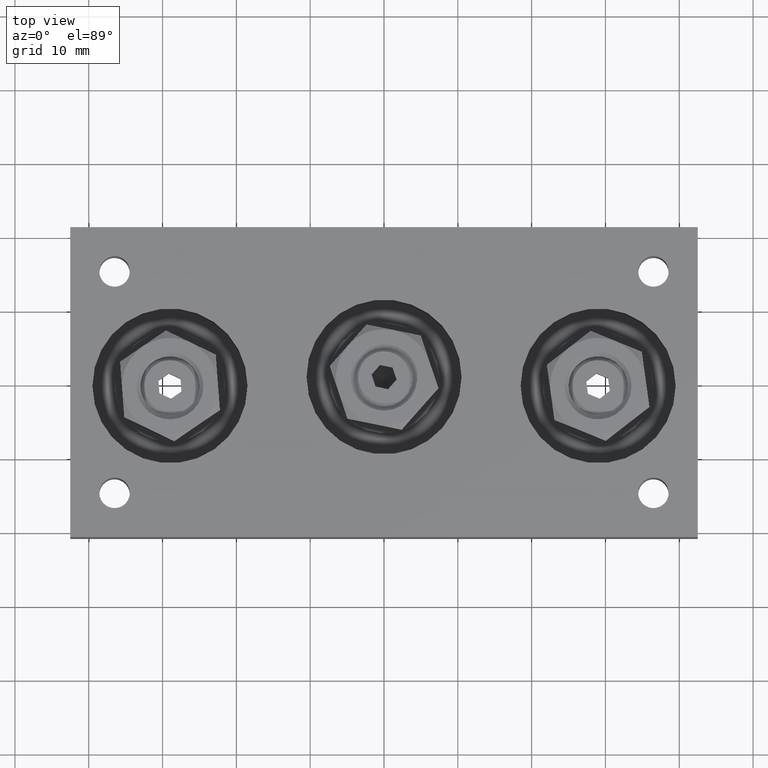
[diagram: clean part render]
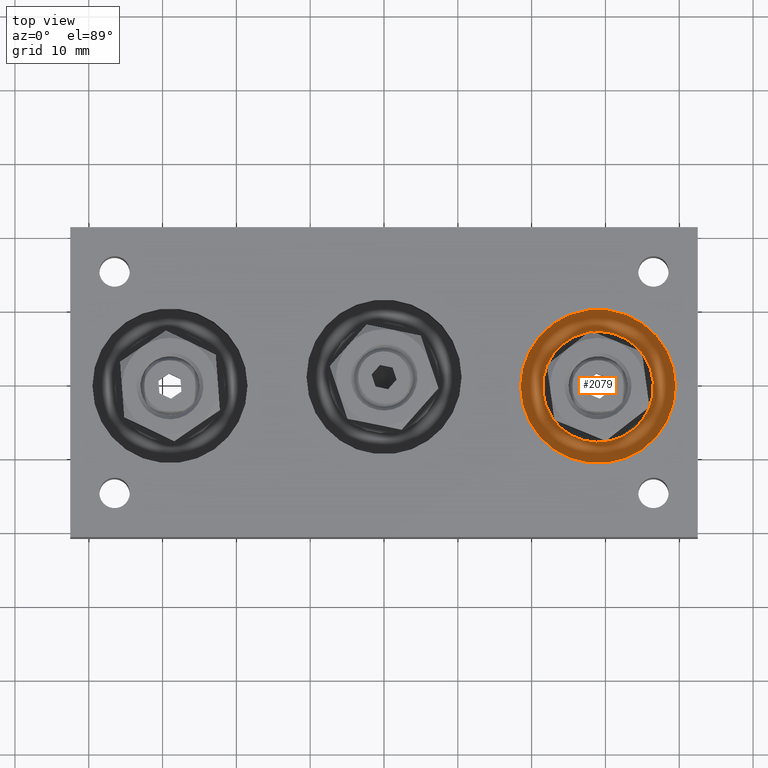
[diagram: same view with one face highlighted and labeled with its STEP entity id]
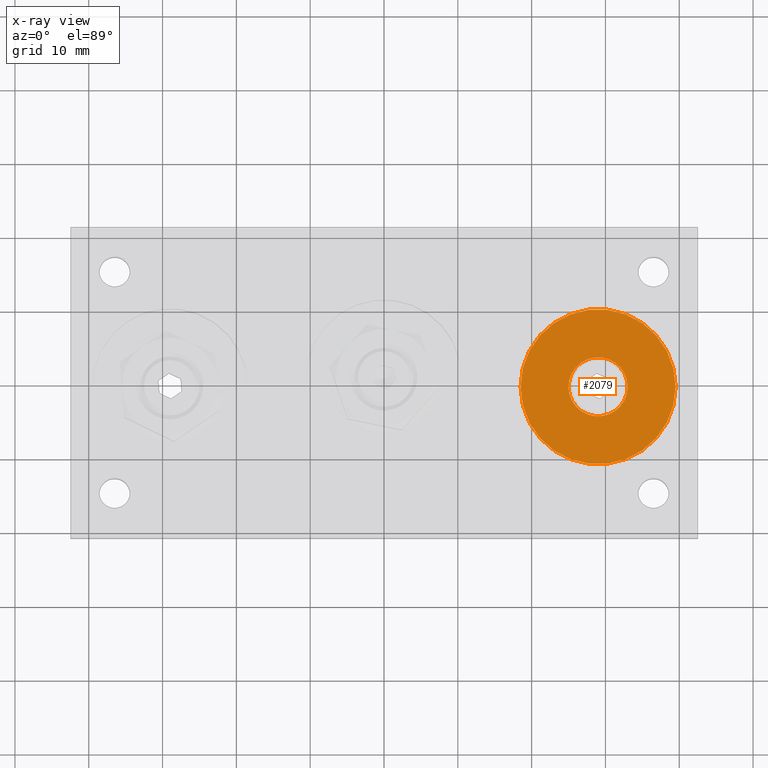
[diagram: x-ray of the same camera — body ghosted, the highlighted face saturated]
A machine part, top view. The second image highlights one B-rep face of the part: STEP entity #2079.
The next image is the same camera in x-ray: the body ghosted, the highlighted face saturated — about 0% of this face is hidden behind the body in this view.
In plain terms, the highlighted planar face has unit normal (0, 0, 1).
Its self-contained STEP definition (entity closure, byte-faithful):
#144=FACE_BOUND('',#434,.T.);
#183=PLANE('',#2442);
#298=FACE_OUTER_BOUND('',#433,.T.);
#433=EDGE_LOOP('',(#1506));
#434=EDGE_LOOP('',(#1507));
#882=CIRCLE('',#2443,10.5);
#883=CIRCLE('',#2444,4.);
#1011=VERTEX_POINT('',#3462);
#1012=VERTEX_POINT('',#3464);
#1205=EDGE_CURVE('',#1011,#1011,#882,.T.);
#1206=EDGE_CURVE('',#1012,#1012,#883,.T.);
#1506=ORIENTED_EDGE('',*,*,#1205,.T.);
#1507=ORIENTED_EDGE('',*,*,#1206,.F.);
#2079=ADVANCED_FACE('',(#298,#144),#183,.T.);
#2442=AXIS2_PLACEMENT_3D('',#3461,#2766,#2767);
#2443=AXIS2_PLACEMENT_3D('',#3463,#2768,#2769);
#2444=AXIS2_PLACEMENT_3D('',#3465,#2770,#2771);
#2766=DIRECTION('center_axis',(0.,0.,1.));
#2767=DIRECTION('ref_axis',(1.,0.,0.));
#2768=DIRECTION('center_axis',(0.,0.,1.));
#2769=DIRECTION('ref_axis',(1.,0.,0.));
#2770=DIRECTION('center_axis',(0.,0.,1.));
#2771=DIRECTION('ref_axis',(1.,0.,0.));
#3461=CARTESIAN_POINT('Origin',(29.,-0.500000000000003,6.2));
#3462=CARTESIAN_POINT('',(18.5,-0.500000000000004,6.2));
#3463=CARTESIAN_POINT('Origin',(29.,-0.500000000000003,6.2));
#3464=CARTESIAN_POINT('',(25.,-0.500000000000003,6.20000000000001));
#3465=CARTESIAN_POINT('Origin',(29.,-0.500000000000003,6.20000000000001));